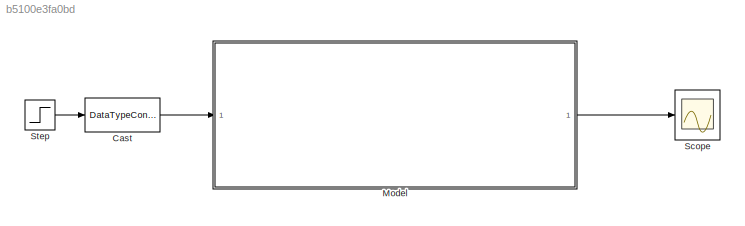
MODEL slx_b5100e3fa0bd
KIND model
CONFIG AbsTol = auto
CONFIG EnableMultiTasking = off
CONFIG FixedStep = Ts
CONFIG InitFcn = para
CONFIG MaxStep = auto
CONFIG MinStep = auto
CONFIG RelTol = 1e-3
CONFIG SampleTimeConstraint = Unconstrained
CONFIG SolverName = FixedStepDiscrete
CONFIG StartTime = 0.0
CONFIG StopTime = 10
BLOCK [DataTypeConversion] Cast
  OutDataTypeStr = boolean
  RndMeth = Floor
  SaturateOnIntegerOverflow = off
BLOCK [ModelReference] Model
  ModelNameDialog = Total_Pjt.slx
  ModelReferenceVersion = 1.4
BLOCK [Scope] Scope
  ActiveDisplayYMaximum = 65907.551952823444
  ActiveDisplayYMinimum = -10061.588672176527
  Floating = off
  GraphicalSettings = {"AxesScalingProperties":{"AlignXAxis":"Center","AlignYAxis":"Center","AutoScaleXAxisLimits":false,"AxesScaling":"Manual","AxesScalingNumUpdates":10,"ExpandOnly":true,"ScaleAxesLimitsAtStop":false,"XAxisDataRange":100,"YAxisDataRange":80},"DisplayProperties":{"ColorOrder":["auto","auto","auto","auto","auto","auto","auto","auto","auto","auto","auto","auto","auto","auto","auto","auto","auto","auto",...<+1976ch>
  MultipleDisplayCache = [{"MaxYLimMag":56250,"MaxYLimReal":65907.551952823444,"MinYLimMag":0,"MinYLimReal":-10061.588672176527,"PlotAsMagnitudePhase":false,"ShowGrid":true,"ShowLegend":false,"Title":"%<SignalLabel>","YLabel":""}]
  NumInputPorts = 1
  ScopeFrameLocation = container
  WasSavedAsWebScope = on
  WindowPosition = [128.000000,48.000000,1280.000000,768.000000,]
BLOCK [Step] Step
  After = 0
  Before = 1
  SampleTime = 0
LINE Cast:1 -> Model:1
LINE Model:1 -> Scope:1
LINE Step:1 -> Cast:1
